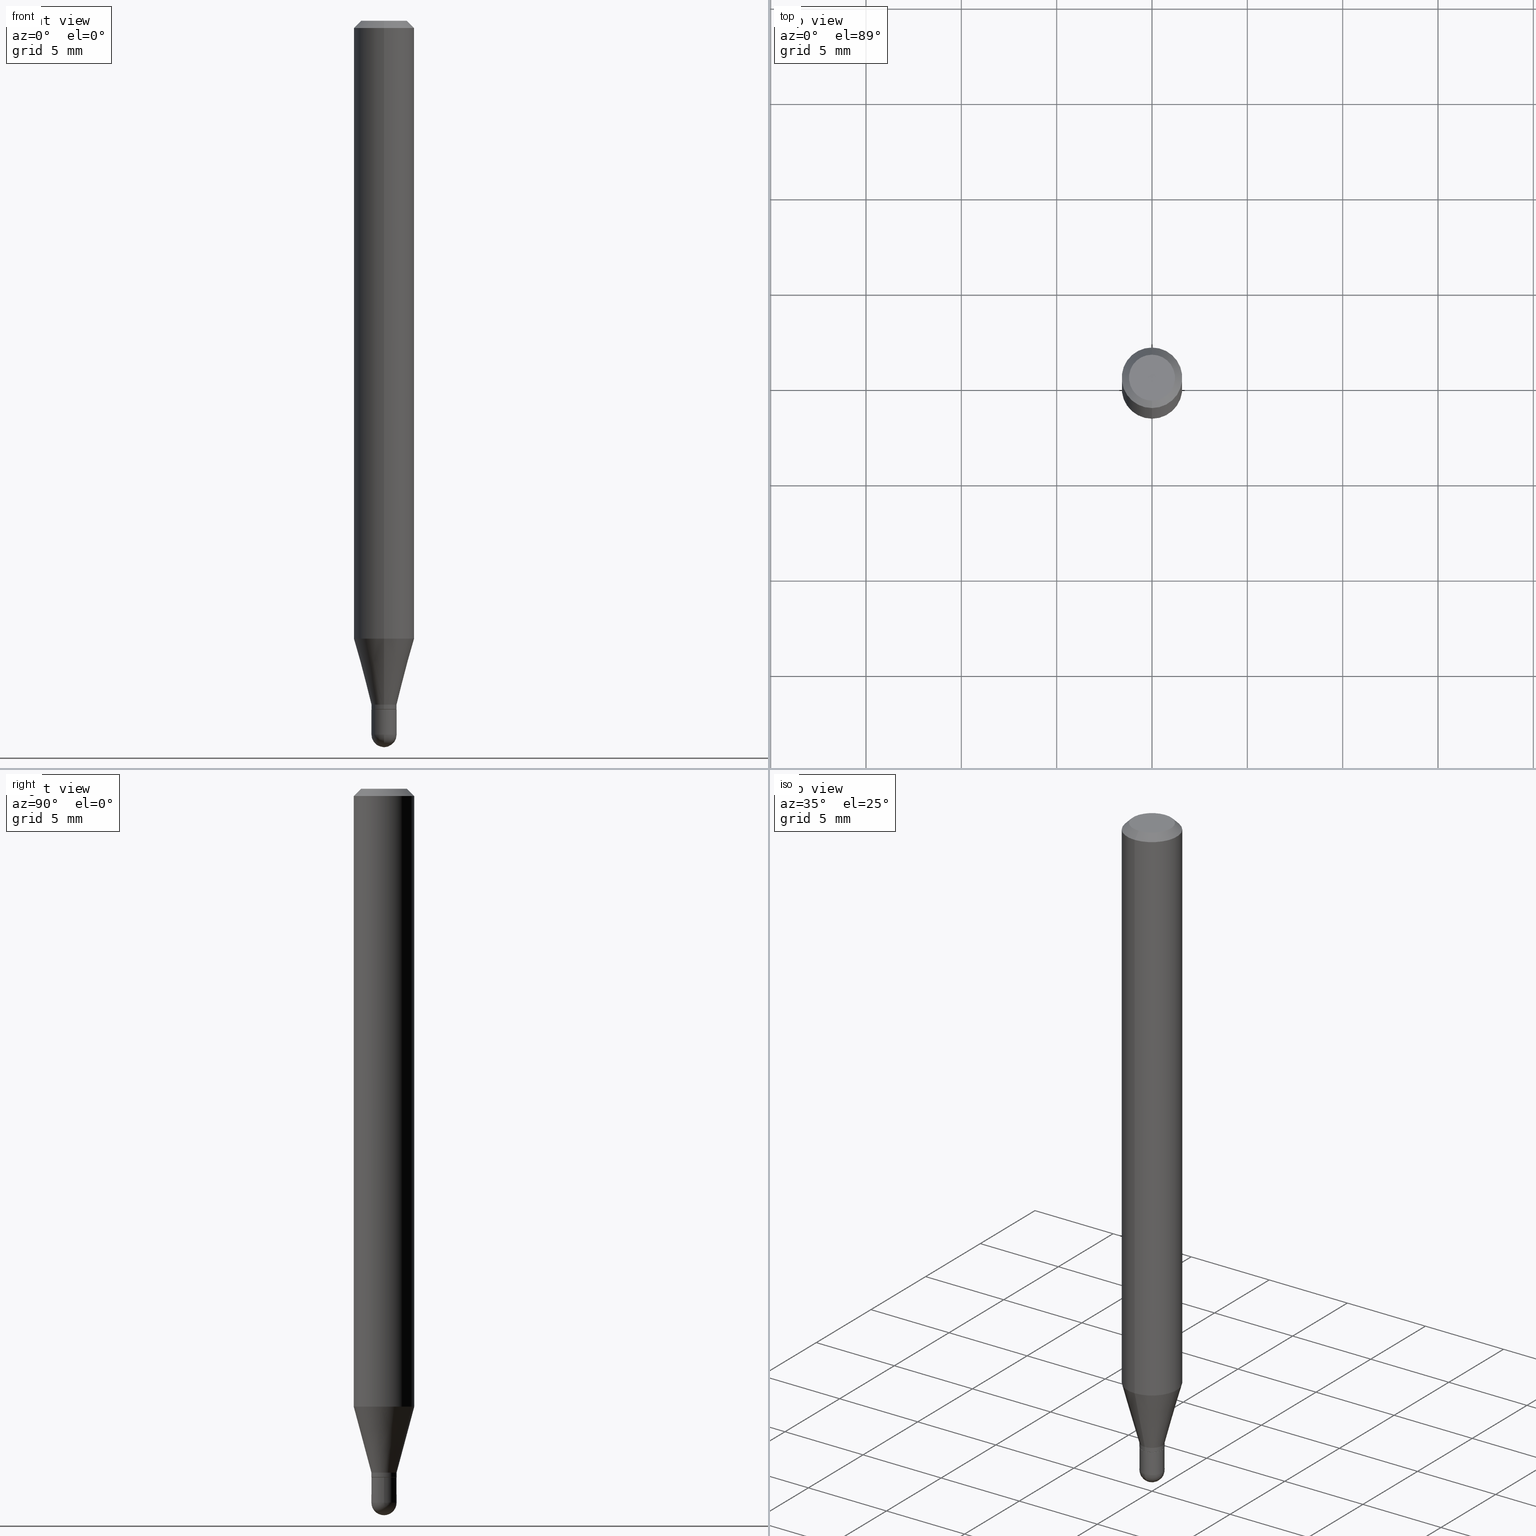
[diagram: canonical four-view strip — front | top / right | iso, engineering-drawing reading convention]
A machine part, canonical four-view strip (front | top / right | iso — engineering-drawing reading convention). The complete STEP part file that produces these views, byte-faithful:
ISO-10303-21;
HEADER;
FILE_DESCRIPTION (( 'STEP AP203' ),
    '1' );
FILE_NAME ('02549.STEP',
    '2024-03-07T20:22:27',
    ( '' ),
    ( '' ),
    'SwSTEP 2.0',
    'SolidWorks 2023',
    '' );
FILE_SCHEMA (( 'CONFIG_CONTROL_DESIGN' ));
ENDSEC;

DATA;
#1 = CC_DESIGN_PERSON_AND_ORGANIZATION_ASSIGNMENT ( #487, #142, ( #154 ) ) ;
#2 = DIRECTION ( 'NONE',  ( 0.000000000000000000, 0.000000000000000000, 1.000000000000000000 ) ) ;
#3 = CIRCLE ( 'NONE', #109, 0.02600000000000011330 ) ;
#4 = FACE_OUTER_BOUND ( 'NONE', #59, .T. ) ;
#5 = APPLICATION_CONTEXT ( 'configuration controlled 3d designs of mechanical parts and assemblies' ) ;
#6 = CARTESIAN_POINT ( 'NONE',  ( 3.144151605738769548E-16, 0.02599999999999499239, -1.412000000000000366 ) ) ;
#7 = COORDINATED_UNIVERSAL_TIME_OFFSET ( 5, 0, .BEHIND. ) ;
#8 = EDGE_CURVE ( 'NONE', #115, #297, #303, .T. ) ;
#9 = LOCAL_TIME ( 15, 22, 27.00000000000000000, #24 ) ;
#10 = APPROVAL_STATUS ( 'not_yet_approved' ) ;
#11 = VERTEX_POINT ( 'NONE', #13 ) ;
#12 = EDGE_LOOP ( 'NONE', ( #480, #423, #65, #251 ) ) ;
#13 = CARTESIAN_POINT ( 'NONE',  ( -1.780655482809649650E-16, -0.02550000000000495967, -1.421999999999999931 ) ) ;
#14 = CARTESIAN_POINT ( 'NONE',  ( -1.780655482809649650E-16, -0.02550000000000495967, -1.421999999999999931 ) ) ;
#15 = ORIENTED_EDGE ( 'NONE', *, *, #267, .F. ) ;
#16 = EDGE_LOOP ( 'NONE', ( #447, #228, #294, #153 ) ) ;
#17 = ADVANCED_FACE ( 'NONE', ( #106 ), #128, .T. ) ;
#18 = VECTOR ( 'NONE', #472, 39.37007874015748143 ) ;
#19 = DIRECTION ( 'NONE',  ( -2.445458525354420395E-29, 3.491496061577879933E-15, 1.000000000000000000 ) ) ;
#20 = VECTOR ( 'NONE', #468, 39.37007874015748143 ) ;
#21 = SHAPE_DEFINITION_REPRESENTATION ( #491, #174 ) ;
#22 = FACE_OUTER_BOUND ( 'NONE', #192, .T. ) ;
#23 = ORIENTED_EDGE ( 'NONE', *, *, #322, .T. ) ;
#24 = COORDINATED_UNIVERSAL_TIME_OFFSET ( 5, 0, .BEHIND. ) ;
#25 = EDGE_CURVE ( 'NONE', #257, #254, #203, .T. ) ;
#26 = DIRECTION ( 'NONE',  ( 5.024295867788190974E-15, 0.7071067811865681119, 0.7071067811865270336 ) ) ;
#27 = VERTEX_POINT ( 'NONE', #6 ) ;
#28 = EDGE_CURVE ( 'NONE', #254, #257, #76, .T. ) ;
#29 = ORIENTED_EDGE ( 'NONE', *, *, #69, .F. ) ;
#30 = CARTESIAN_POINT ( 'NONE',  ( 3.477456642395264859E-29, -4.964886463834953365E-15, -1.421999999999999931 ) ) ;
#31 = DIRECTION ( 'NONE',  ( -6.982962677686265922E-15, -1.000000000000000000, 3.491496061577879933E-15 ) ) ;
#32 = ADVANCED_FACE ( 'NONE', ( #4 ), #492, .T. ) ;
#33 = DIRECTION ( 'NONE',  ( 1.000000000000000000, -6.982962677686257244E-15, 0.000000000000000000 ) ) ;
#34 = CC_DESIGN_DATE_AND_TIME_ASSIGNMENT ( #338, #368, ( #489 ) ) ;
#35 = DIRECTION ( 'NONE',  ( -6.982962677686265133E-15, -1.000000000000000000, 0.000000000000000000 ) ) ;
#36 = AXIS2_PLACEMENT_3D ( 'NONE', #229, #506, #195 ) ;
#38 = CIRCLE ( 'NONE', #374, 0.02599999999999992248 ) ;
#37 = DIRECTION ( 'NONE',  ( -2.445468806185136877E-29, 3.491481338843145188E-15, 1.000000000000000000 ) ) ;
#39 = CARTESIAN_POINT ( 'NONE',  ( 8.024680406694662716E-45, -1.145721333848216833E-30, -3.281462483822598204E-16 ) ) ;
#40 = PRODUCT_DEFINITION ( 'UNKNOWN', '', #154, #48 ) ;
#41 = DIRECTION ( 'NONE',  ( -6.982962677686266711E-15, -1.000000000000000000, 3.491496061577880327E-15 ) ) ;
#42 = CARTESIAN_POINT ( 'NONE',  ( 0.000000000000000000, 0.000000000000000000, 0.000000000000000000 ) ) ;
#43 = CARTESIAN_POINT ( 'NONE',  ( 1.815570296198776877E-16, 0.02599999999999503403, -1.421999999999999931 ) ) ;
#44 = CARTESIAN_POINT ( 'NONE',  ( 3.452987437800442419E-29, -4.929992438947967820E-15, -1.412000000000000366 ) ) ;
#45 = AXIS2_PLACEMENT_3D ( 'NONE', #44, #439, #173 ) ;
#46 = PERSON_AND_ORGANIZATION ( #50, #360 ) ;
#47 = VECTOR ( 'NONE', #367, 39.37007874015748143 ) ;
#48 = DESIGN_CONTEXT ( 'detailed design', #5, 'design' ) ;
#49 = APPROVAL_DATE_TIME ( #250, #385 ) ;
#50 = PERSON ( 'UNSPECIFIED', 'UNSPECIFIED', 'UNSPECIFIED', ('UNSPECIFIED'), ('UNSPECIFIED'), ('UNSPECIFIED') ) ;
#51 = LENGTH_MEASURE_WITH_UNIT ( LENGTH_MEASURE( 0.02539999999999999897 ), #442 );
#52 = VECTOR ( 'NONE', #170, 39.37007874015748143 ) ;
#53 = CONICAL_SURFACE ( 'NONE', #36, 0.06250000000000000000, 0.7853981633974483900 ) ;
#54 = CIRCLE ( 'NONE', #122, 0.06250000000000000000 ) ;
#55 = ORIENTED_EDGE ( 'NONE', *, *, #86, .T. ) ;
#56 = CARTESIAN_POINT ( 'NONE',  ( 3.840629472727447874E-16, 0.04749999999999999362, -4.939923113072091241E-16 ) ) ;
#57 = DIRECTION ( 'NONE',  ( 1.000000000000000000, -6.982962677686257244E-15, 0.000000000000000000 ) ) ;
#58 = ADVANCED_FACE ( 'NONE', ( #327 ), #478, .T. ) ;
#59 = EDGE_LOOP ( 'NONE', ( #372, #193, #407, #414 ) ) ;
#60 = FACE_OUTER_BOUND ( 'NONE', #440, .T. ) ;
#61 = EDGE_CURVE ( 'NONE', #11, #415, #118, .T. ) ;
#62 = CALENDAR_DATE ( 2024, 7, 3 ) ;
#63 = DIRECTION ( 'NONE',  ( -2.445468806185136597E-29, 3.491481338843145583E-15, 1.000000000000000000 ) ) ;
#64 = CC_DESIGN_SECURITY_CLASSIFICATION ( #489, ( #154 ) ) ;
#65 = ORIENTED_EDGE ( 'NONE', *, *, #390, .T. ) ;
#66 = DIRECTION ( 'NONE',  ( -2.445458525354420395E-29, 3.491496061577879933E-15, 1.000000000000000000 ) ) ;
#67 = ORIENTED_EDGE ( 'NONE', *, *, #300, .F. ) ;
#68 = AXIS2_PLACEMENT_3D ( 'NONE', #233, #279, #349 ) ;
#69 = EDGE_CURVE ( 'NONE', #318, #337, #185, .T. ) ;
#70 = CARTESIAN_POINT ( 'NONE',  ( 3.602397587965025364E-29, -5.149627575132580366E-15, -1.474000000000000199 ) ) ;
#71 = EDGE_LOOP ( 'NONE', ( #223, #497, #281, #373 ) ) ;
#72 = CARTESIAN_POINT ( 'NONE',  ( 4.440892098500939734E-16, 0.06249999999999995143, -0.01500000000000054588 ) ) ;
#73 = ORIENTED_EDGE ( 'NONE', *, *, #28, .F. ) ;
#74 = PERSON_AND_ORGANIZATION_ROLE ( 'classification_officer' ) ;
#75 = FACE_OUTER_BOUND ( 'NONE', #370, .T. ) ;
#76 = CIRCLE ( 'NONE', #427, 0.06250000000000000000 ) ;
#77 = MANIFOLD_SOLID_BREP ( 'Body-Move/Copy2[1]', #135 ) ;
#78 = CIRCLE ( 'NONE', #474, 0.02599999999999999534 ) ;
#79 = FACE_OUTER_BOUND ( 'NONE', #453, .T. ) ;
#80 = CC_DESIGN_PERSON_AND_ORGANIZATION_ASSIGNMENT ( #255, #74, ( #489 ) ) ;
#81 = CARTESIAN_POINT ( 'NONE',  ( -1.815570296198081940E-16, -0.02600000000000497052, -1.421500000000000208 ) ) ;
#82 = DIRECTION ( 'NONE',  ( 1.000000000000000000, -6.982962677686257244E-15, 0.000000000000000000 ) ) ;
#83 = CC_DESIGN_APPROVAL ( #159, ( #489 ) ) ;
#84 = LOCAL_TIME ( 15, 22, 27.00000000000000000, #172 ) ;
#85 = CIRCLE ( 'NONE', #224, 0.02599999999999991901 ) ;
#86 = EDGE_CURVE ( 'NONE', #105, #254, #431, .T. ) ;
#87 = FACE_OUTER_BOUND ( 'NONE', #12, .T. ) ;
#88 = CYLINDRICAL_SURFACE ( 'NONE', #459, 0.06250000000000000000 ) ;
#89 = CARTESIAN_POINT ( 'NONE',  ( 3.664868060749905896E-29, -5.241998130781394261E-15, -1.500000000000000444 ) ) ;
#90 = DIRECTION ( 'NONE',  ( -2.445458525354420395E-29, 3.491496061577879933E-15, 1.000000000000000000 ) ) ;
#91 = APPROVAL_ROLE ( '' ) ;
#92 = ADVANCED_FACE ( 'NONE', ( #234 ), #201, .T. ) ;
#93 = PERSON_AND_ORGANIZATION ( #50, #360 ) ;
#94 = AXIS2_PLACEMENT_3D ( 'NONE', #205, #315, #35 ) ;
#95 = VERTEX_POINT ( 'NONE', #56 ) ;
#96 = ORIENTED_EDGE ( 'NONE', *, *, #141, .T. ) ;
#97 = CYLINDRICAL_SURFACE ( 'NONE', #392, 0.06250000000000000000 ) ;
#98 = PERSON_AND_ORGANIZATION ( #50, #360 ) ;
#99 = EDGE_CURVE ( 'NONE', #11, #331, #490, .T. ) ;
#100 = EDGE_LOOP ( 'NONE', ( #312, #102, #219, #67, #488 ) ) ;
#101 = CIRCLE ( 'NONE', #504, 0.04749999999999999362 ) ;
#102 = ORIENTED_EDGE ( 'NONE', *, *, #406, .T. ) ;
#103 = DIRECTION ( 'NONE',  ( -6.982962677686266711E-15, -1.000000000000000000, 3.491496061577880327E-15 ) ) ;
#104 = DIRECTION ( 'NONE',  ( -6.982962677686265133E-15, -1.000000000000000000, 0.000000000000000000 ) ) ;
#105 = VERTEX_POINT ( 'NONE', #183 ) ;
#106 = FACE_OUTER_BOUND ( 'NONE', #335, .T. ) ;
#107 = PERSON_AND_ORGANIZATION ( #50, #360 ) ;
#108 = DIRECTION ( 'NONE',  ( -6.982962677686266711E-15, -1.000000000000000000, 0.000000000000000000 ) ) ;
#109 = AXIS2_PLACEMENT_3D ( 'NONE', #387, #171, #505 ) ;
#110 = ORIENTED_EDGE ( 'NONE', *, *, #463, .F. ) ;
#111 = LINE ( 'NONE', #188, #169 ) ;
#112 = FACE_OUTER_BOUND ( 'NONE', #146, .T. ) ;
#113 = ORIENTED_EDGE ( 'NONE', *, *, #243, .T. ) ;
#114 = LINE ( 'NONE', #264, #430 ) ;
#115 = VERTEX_POINT ( 'NONE', #298 ) ;
#116 = DIRECTION ( 'NONE',  ( -2.445458525354420395E-29, 3.491496061577879933E-15, 1.000000000000000000 ) ) ;
#117 = PRODUCT_RELATED_PRODUCT_CATEGORY ( 'detail', '', ( #180 ) ) ;
#118 = CIRCLE ( 'NONE', #466, 0.02549999999999999489 ) ;
#119 = ADVANCED_FACE ( 'NONE', ( #60 ), #97, .T. ) ;
#120 = CIRCLE ( 'NONE', #469, 0.02599999999999992248 ) ;
#121 = LINE ( 'NONE', #470, #398 ) ;
#122 = AXIS2_PLACEMENT_3D ( 'NONE', #245, #325, #405 ) ;
#123 = CARTESIAN_POINT ( 'NONE',  ( -4.287811248607203282E-16, -0.06250000000000005551, -0.01500000000000011047 ) ) ;
#124 = CARTESIAN_POINT ( 'NONE',  ( 3.477456642395264859E-29, -4.964886463834953365E-15, -1.421999999999999931 ) ) ;
#125 = ADVANCED_FACE ( 'NONE', ( #436 ), #88, .T. ) ;
#126 = EDGE_CURVE ( 'NONE', #27, #379, #111, .T. ) ;
#127 = DIRECTION ( 'NONE',  ( 1.000000000000000000, -6.982962677686266711E-15, 4.876176775795935793E-29 ) ) ;
#128 = CONICAL_SURFACE ( 'NONE', #239, 0.02549999999999999489, 0.7853981633974739252 ) ;
#129 = VECTOR ( 'NONE', #26, 39.37007874015748143 ) ;
#130 = CARTESIAN_POINT ( 'NONE',  ( 3.602397587965025364E-29, -5.149627575132580366E-15, -1.474000000000000199 ) ) ;
#131 = DIRECTION ( 'NONE',  ( -2.445458525354420395E-29, 3.491496061577879933E-15, 1.000000000000000000 ) ) ;
#132 =( NAMED_UNIT ( * ) PLANE_ANGLE_UNIT ( ) SI_UNIT ( $, .RADIAN. ) );
#133 = CALENDAR_DATE ( 2024, 7, 3 ) ;
#134 = EDGE_CURVE ( 'NONE', #421, #318, #3, .T. ) ;
#135 = CLOSED_SHELL ( 'NONE', ( #178, #92, #399, #363, #400 ) ) ;
#136 = CARTESIAN_POINT ( 'NONE',  ( 0.000000000000000000, 0.000000000000000000, 0.000000000000000000 ) ) ;
#137 = CIRCLE ( 'NONE', #428, 0.02600000000000000228 ) ;
#138 = APPROVAL_ROLE ( '' ) ;
#139 = ORIENTED_EDGE ( 'NONE', *, *, #221, .T. ) ;
#140 = DIRECTION ( 'NONE',  ( -2.445458525354420395E-29, 3.491496061577879933E-15, 1.000000000000000000 ) ) ;
#141 = EDGE_CURVE ( 'NONE', #415, #342, #340, .T. ) ;
#142 = PERSON_AND_ORGANIZATION_ROLE ( 'design_supplier' ) ;
#143 = ORIENTED_EDGE ( 'NONE', *, *, #334, .F. ) ;
#144 = EDGE_LOOP ( 'NONE', ( #458, #139, #457, #29 ) ) ;
#145 = AXIS2_PLACEMENT_3D ( 'NONE', #196, #301, #103 ) ;
#146 = EDGE_LOOP ( 'NONE', ( #149, #462 ) ) ;
#147 = ORIENTED_EDGE ( 'NONE', *, *, #243, .F. ) ;
#148 = FACE_OUTER_BOUND ( 'NONE', #333, .T. ) ;
#149 = ORIENTED_EDGE ( 'NONE', *, *, #329, .T. ) ;
#150 = AXIS2_PLACEMENT_3D ( 'NONE', #218, #2, #179 ) ;
#151 = PLANE ( 'NONE',  #232 ) ;
#152 = ADVANCED_FACE ( 'NONE', ( #148 ), #53, .T. ) ;
#153 = ORIENTED_EDGE ( 'NONE', *, *, #212, .F. ) ;
#154 = PRODUCT_DEFINITION_FORMATION_WITH_SPECIFIED_SOURCE ( 'ANY', '', #180, .NOT_KNOWN. ) ;
#155 = AXIS2_PLACEMENT_3D ( 'NONE', #289, #248, #209 ) ;
#156 = CYLINDRICAL_SURFACE ( 'NONE', #145, 0.02599999999999992248 ) ;
#157 = AXIS2_PLACEMENT_3D ( 'NONE', #43, #391, #429 ) ;
#158 = DIRECTION ( 'NONE',  ( -2.445458525354420395E-29, 3.491496061577879933E-15, 1.000000000000000000 ) ) ;
#159 = APPROVAL ( #424, 'UNSPECIFIED' ) ;
#160 = CARTESIAN_POINT ( 'NONE',  ( -0.02600000000000000228, -4.870923867347250071E-15, -1.474000000000000199 ) ) ;
#161 = FACE_OUTER_BOUND ( 'NONE', #445, .T. ) ;
#162 = VECTOR ( 'NONE', #454, 39.37007874015748854 ) ;
#163 = ORIENTED_EDGE ( 'NONE', *, *, #334, .T. ) ;
#164 = AXIS2_PLACEMENT_3D ( 'NONE', #348, #381, #31 ) ;
#165 = CARTESIAN_POINT ( 'NONE',  ( 1.847411112976624507E-16, 0.02599999999999490913, -1.474000000000000199 ) ) ;
#166 = DIRECTION ( 'NONE',  ( -2.445468806185136597E-29, 3.491481338843145583E-15, 1.000000000000000000 ) ) ;
#167 = APPROVAL_PERSON_ORGANIZATION ( #98, #285, #138 ) ;
#168 = CARTESIAN_POINT ( 'NONE',  ( 0.000000000000000000, 0.000000000000000000, 0.000000000000000000 ) ) ;
#169 = VECTOR ( 'NONE', #225, 39.37007874015748854 ) ;
#170 = DIRECTION ( 'NONE',  ( -2.445458525354420395E-29, 3.491496061577879933E-15, 1.000000000000000000 ) ) ;
#171 = DIRECTION ( 'NONE',  ( 1.000000000000000000, -7.105427357601001070E-15, 4.926315508542082329E-29 ) ) ;
#172 = COORDINATED_UNIVERSAL_TIME_OFFSET ( 5, 0, .BEHIND. ) ;
#173 = DIRECTION ( 'NONE',  ( -6.982962677686266711E-15, -1.000000000000000000, 0.000000000000000000 ) ) ;
#174 = ADVANCED_BREP_SHAPE_REPRESENTATION ( '02549', ( #77, #246, #150 ), #485 ) ;
#175 = PERSON_AND_ORGANIZATION ( #50, #360 ) ;
#176 =( CONVERSION_BASED_UNIT ( 'INCH', #51 ) LENGTH_UNIT ( ) NAMED_UNIT ( #253 ) );
#177 = EDGE_CURVE ( 'NONE', #115, #27, #120, .T. ) ;
#178 = ADVANCED_FACE ( 'NONE', ( #199 ), #259, .T. ) ;
#179 = DIRECTION ( 'NONE',  ( 1.000000000000000000, 0.000000000000000000, 0.000000000000000000 ) ) ;
#180 = PRODUCT ( '02549', '02549', '', ( #408 ) ) ;
#181 = ORIENTED_EDGE ( 'NONE', *, *, #443, .F. ) ;
#182 = ORIENTED_EDGE ( 'NONE', *, *, #390, .F. ) ;
#183 = CARTESIAN_POINT ( 'NONE',  ( -3.773273898774340269E-16, -0.04749999999999999362, -1.623001854573105413E-16 ) ) ;
#184 = VERTEX_POINT ( 'NONE', #422 ) ;
#185 = CIRCLE ( 'NONE', #247, 0.02600000000000000228 ) ;
#186 = CARTESIAN_POINT ( 'NONE',  ( -4.364351673553916201E-16, -0.06250000000000000000, 2.182185038486174958E-16 ) ) ;
#187 = CIRCLE ( 'NONE', #346, 0.02600000000000000228 ) ;
#188 = CARTESIAN_POINT ( 'NONE',  ( 1.847411112976599855E-16, 0.02599999999999499239, -1.412000000000000366 ) ) ;
#189 = EDGE_LOOP ( 'NONE', ( #344, #341 ) ) ;
#190 = CC_DESIGN_PERSON_AND_ORGANIZATION_ASSIGNMENT ( #46, #357, ( #40 ) ) ;
#191 = CARTESIAN_POINT ( 'NONE',  ( 3.452987437800442419E-29, -4.929992438947967820E-15, -1.412000000000000366 ) ) ;
#192 = EDGE_LOOP ( 'NONE', ( #366, #96, #266, #451 ) ) ;
#193 = ORIENTED_EDGE ( 'NONE', *, *, #267, .T. ) ;
#194 = APPROVAL_DATE_TIME ( #418, #159 ) ;
#195 = DIRECTION ( 'NONE',  ( 6.982962677686265922E-15, 1.000000000000000000, -3.483106191921935554E-15 ) ) ;
#196 = CARTESIAN_POINT ( 'NONE',  ( 0.000000000000000000, 0.000000000000000000, 0.000000000000000000 ) ) ;
#197 = AXIS2_PLACEMENT_3D ( 'NONE', #272, #158, #456 ) ;
#198 = CC_DESIGN_PERSON_AND_ORGANIZATION_ASSIGNMENT ( #290, #332, ( #154 ) ) ;
#199 = FACE_OUTER_BOUND ( 'NONE', #100, .T. ) ;
#200 = PLANE ( 'NONE',  #157 ) ;
#201 = SPHERICAL_SURFACE ( 'NONE', #316, 0.02600000000000011330 ) ;
#202 = DIRECTION ( 'NONE',  ( 2.445458525354420395E-29, -3.491496061577879933E-15, -1.000000000000000000 ) ) ;
#203 = CIRCLE ( 'NONE', #155, 0.06250000000000000000 ) ;
#204 = DIRECTION ( 'NONE',  ( 1.000000000000000000, -6.982962677686265133E-15, 4.883557194083112901E-29 ) ) ;
#205 = CARTESIAN_POINT ( 'NONE',  ( 3.476219293791308538E-29, -4.963161651532957573E-15, -1.421500000000000208 ) ) ;
#206 = CARTESIAN_POINT ( 'NONE',  ( 4.440892098500935790E-16, 0.06249999999999552441, -1.275780145523737197 ) ) ;
#207 = LOCAL_TIME ( 15, 22, 27.00000000000000000, #7 ) ;
#208 = CARTESIAN_POINT ( 'NONE',  ( 3.604621020316892110E-29, -5.146443493454796836E-15, -1.474000000000000199 ) ) ;
#209 = DIRECTION ( 'NONE',  ( -6.982962677686265922E-15, -1.000000000000000000, 3.483106191921935554E-15 ) ) ;
#210 = ADVANCED_FACE ( 'NONE', ( #343 ), #156, .T. ) ;
#211 = AXIS2_PLACEMENT_3D ( 'NONE', #393, #323, #320 ) ;
#212 = EDGE_CURVE ( 'NONE', #331, #115, #345, .T. ) ;
#213 = APPLICATION_PROTOCOL_DEFINITION ( 'international standard', 'config_control_design', 1994, #288 ) ;
#214 = EDGE_CURVE ( 'NONE', #297, #254, #371, .T. ) ;
#215 = DATE_AND_TIME ( #133, #207 ) ;
#216 = CIRCLE ( 'NONE', #382, 0.02549999999999999489 ) ;
#217 = ORIENTED_EDGE ( 'NONE', *, *, #426, .T. ) ;
#218 = CARTESIAN_POINT ( 'NONE',  ( 0.000000000000000000, 0.000000000000000000, 0.000000000000000000 ) ) ;
#219 = ORIENTED_EDGE ( 'NONE', *, *, #268, .F. ) ;
#220 = DIRECTION ( 'NONE',  ( 1.000000000000000000, -6.982962677686258822E-15, 0.000000000000000000 ) ) ;
#221 = EDGE_CURVE ( 'NONE', #421, #448, #299, .T. ) ;
#222 = CARTESIAN_POINT ( 'NONE',  ( -1.815570296198423862E-16, -0.02599999999999992248, 9.077889760102461566E-17 ) ) ;
#223 = ORIENTED_EDGE ( 'NONE', *, *, #221, .F. ) ;
#224 = AXIS2_PLACEMENT_3D ( 'NONE', #227, #378, #425 ) ;
#225 = DIRECTION ( 'NONE',  ( 1.839019923739603471E-15, 0.2588190451025254024, 0.9659258262890669799 ) ) ;
#226 = ORIENTED_EDGE ( 'NONE', *, *, #141, .F. ) ;
#227 = CARTESIAN_POINT ( 'NONE',  ( 3.476219293791308538E-29, -4.963161651532957573E-15, -1.421500000000000208 ) ) ;
#228 = ORIENTED_EDGE ( 'NONE', *, *, #481, .T. ) ;
#229 = CARTESIAN_POINT ( 'NONE',  ( 3.668187788031710974E-31, -5.237244092366934457E-17, -0.01500000000000032904 ) ) ;
#230 = CC_DESIGN_PERSON_AND_ORGANIZATION_ASSIGNMENT ( #93, #292, ( #180 ) ) ;
#231 = PLANE ( 'NONE',  #164 ) ;
#232 = AXIS2_PLACEMENT_3D ( 'NONE', #498, #307, #501 ) ;
#233 = CARTESIAN_POINT ( 'NONE',  ( 8.024680406694662716E-45, -1.145721333848216833E-30, -3.281462483822598204E-16 ) ) ;
#234 = FACE_OUTER_BOUND ( 'NONE', #71, .T. ) ;
#235 = DIRECTION ( 'NONE',  ( -6.982962677686265133E-15, -1.000000000000000000, 0.000000000000000000 ) ) ;
#236 = APPROVAL_PERSON_ORGANIZATION ( #107, #159, #460 ) ;
#237 = ADVANCED_FACE ( 'NONE', ( #112 ), #151, .F. ) ;
#238 = DIRECTION ( 'NONE',  ( -2.445468806185136597E-29, 3.491481338843145583E-15, 1.000000000000000000 ) ) ;
#239 = AXIS2_PLACEMENT_3D ( 'NONE', #358, #90, #356 ) ;
#240 = AXIS2_PLACEMENT_3D ( 'NONE', #70, #461, #104 ) ;
#241 = DIRECTION ( 'NONE',  ( 1.000000000000000000, -6.982962677686265133E-15, 4.883557194083112901E-29 ) ) ;
#242 = DIRECTION ( 'NONE',  ( -6.982962677686266711E-15, -1.000000000000000000, 0.000000000000000000 ) ) ;
#243 = EDGE_CURVE ( 'NONE', #415, #11, #216, .T. ) ;
#244 = DIRECTION ( 'NONE',  ( -6.982962677686265922E-15, -1.000000000000000000, 3.483106191921935554E-15 ) ) ;
#245 = CARTESIAN_POINT ( 'NONE',  ( 3.119867433348925085E-29, -4.454381353535382076E-15, -1.275780145523736753 ) ) ;
#246 = MANIFOLD_SOLID_BREP ( 'Body-Move/Copy2[2]', #508 ) ;
#247 = AXIS2_PLACEMENT_3D ( 'NONE', #384, #510, #277 ) ;
#248 = DIRECTION ( 'NONE',  ( -2.445458525354420395E-29, 3.491496061577879933E-15, 1.000000000000000000 ) ) ;
#249 = CIRCLE ( 'NONE', #435, 0.02600000000000000228 ) ;
#250 = DATE_AND_TIME ( #359, #403 ) ;
#251 = ORIENTED_EDGE ( 'NONE', *, *, #25, .T. ) ;
#252 = CARTESIAN_POINT ( 'NONE',  ( 1.847411112976254729E-16, 0.02599999999999992248, -9.077889760102461566E-17 ) ) ;
#253 = DIMENSIONAL_EXPONENTS ( 1.000000000000000000, 0.000000000000000000, 0.000000000000000000, 0.000000000000000000, 0.000000000000000000, 0.000000000000000000, 0.000000000000000000 ) ;
#254 = VERTEX_POINT ( 'NONE', #450 ) ;
#255 = PERSON_AND_ORGANIZATION ( #50, #360 ) ;
#256 = VECTOR ( 'NONE', #66, 39.37007874015748143 ) ;
#257 = VERTEX_POINT ( 'NONE', #72 ) ;
#258 = ORIENTED_EDGE ( 'NONE', *, *, #212, .T. ) ;
#259 = CYLINDRICAL_SURFACE ( 'NONE', #330, 0.02600000000000000228 ) ;
#260 = ORIENTED_EDGE ( 'NONE', *, *, #8, .F. ) ;
#261 = DIRECTION ( 'NONE',  ( -2.445458525354420395E-29, 3.491496061577879933E-15, 1.000000000000000000 ) ) ;
#262 = VERTEX_POINT ( 'NONE', #380 ) ;
#263 = EDGE_LOOP ( 'NONE', ( #377, #499, #369, #493 ) ) ;
#264 = CARTESIAN_POINT ( 'NONE',  ( 0.02600000000000000228, -1.815570296198429532E-16, 1.267805961706943404E-30 ) ) ;
#265 = CIRCLE ( 'NONE', #68, 0.04749999999999999362 ) ;
#266 = ORIENTED_EDGE ( 'NONE', *, *, #308, .F. ) ;
#267 = EDGE_CURVE ( 'NONE', #27, #115, #38, .T. ) ;
#268 = EDGE_CURVE ( 'NONE', #184, #262, #78, .T. ) ;
#269 = CARTESIAN_POINT ( 'NONE',  ( 3.477442023053986233E-29, -4.964907399563745843E-15, -1.421999999999999931 ) ) ;
#270 = ORIENTED_EDGE ( 'NONE', *, *, #126, .T. ) ;
#271 = CALENDAR_DATE ( 2024, 7, 3 ) ;
#272 = CARTESIAN_POINT ( 'NONE',  ( 3.477442023053986233E-29, -4.964907399563745843E-15, -1.421999999999999931 ) ) ;
#273 = DIRECTION ( 'NONE',  ( -6.982962677686265922E-15, -1.000000000000000000, 0.000000000000000000 ) ) ;
#274 = LOCAL_TIME ( 15, 22, 27.00000000000000000, #495 ) ;
#275 = CARTESIAN_POINT ( 'NONE',  ( 1.847411112976595911E-16, 0.02599999999999487096, -1.421500000000000208 ) ) ;
#276 = AXIS2_PLACEMENT_3D ( 'NONE', #130, #241, #235 ) ;
#277 = DIRECTION ( 'NONE',  ( 1.000000000000000000, -6.982962677686257244E-15, 0.000000000000000000 ) ) ;
#278 = CARTESIAN_POINT ( 'NONE',  ( 3.604621020316892110E-29, -5.146443493454796836E-15, -1.474000000000000199 ) ) ;
#279 = DIRECTION ( 'NONE',  ( -2.445458525354420395E-29, 3.491496061577879933E-15, 1.000000000000000000 ) ) ;
#280 = APPROVAL_PERSON_ORGANIZATION ( #175, #385, #91 ) ;
#281 = ORIENTED_EDGE ( 'NONE', *, *, #417, .F. ) ;
#282 = CARTESIAN_POINT ( 'NONE',  ( 3.452987437800442419E-29, -4.929992438947967820E-15, -1.412000000000000366 ) ) ;
#283 = CIRCLE ( 'NONE', #482, 0.02599999999999999534 ) ;
#284 = ADVANCED_FACE ( 'NONE', ( #22 ), #310, .T. ) ;
#285 = APPROVAL ( #10, 'UNSPECIFIED' ) ;
#286 = DIRECTION ( 'NONE',  ( -2.445458525354420395E-29, 3.491496061577879933E-15, 1.000000000000000000 ) ) ;
#287 = CARTESIAN_POINT ( 'NONE',  ( 3.668187788031710974E-31, -5.237244092366934457E-17, -0.01500000000000032904 ) ) ;
#288 = APPLICATION_CONTEXT ( 'configuration controlled 3d designs of mechanical parts and assemblies' ) ;
#289 = CARTESIAN_POINT ( 'NONE',  ( 3.668187788031710974E-31, -5.237244092366934457E-17, -0.01500000000000032904 ) ) ;
#290 = PERSON_AND_ORGANIZATION ( #50, #360 ) ;
#291 = CONICAL_SURFACE ( 'NONE', #351, 0.06250000000000000000, 0.7853981633974483900 ) ;
#292 = PERSON_AND_ORGANIZATION_ROLE ( 'design_owner' ) ;
#293 = LINE ( 'NONE', #252, #52 ) ;
#294 = ORIENTED_EDGE ( 'NONE', *, *, #177, .F. ) ;
#295 = DIRECTION ( 'NONE',  ( -6.982962677686265922E-15, -1.000000000000000000, 3.491496061577879933E-15 ) ) ;
#296 = DIRECTION ( 'NONE',  ( -6.982962677686265133E-15, -1.000000000000000000, 0.000000000000000000 ) ) ;
#297 = VERTEX_POINT ( 'NONE', #313 ) ;
#298 = CARTESIAN_POINT ( 'NONE',  ( -1.815570296198078736E-16, -0.02600000000000485256, -1.412000000000000366 ) ) ;
#299 = CIRCLE ( 'NONE', #240, 0.02600000000000011330 ) ;
#300 = EDGE_CURVE ( 'NONE', #503, #184, #114, .T. ) ;
#301 = DIRECTION ( 'NONE',  ( -2.445458525354420395E-29, 3.491496061577879933E-15, 1.000000000000000000 ) ) ;
#302 = ORIENTED_EDGE ( 'NONE', *, *, #177, .T. ) ;
#303 = LINE ( 'NONE', #412, #162 ) ;
#304 = DIRECTION ( 'NONE',  ( -2.445468806185136597E-29, 3.491481338843145583E-15, 1.000000000000000000 ) ) ;
#305 = ORIENTED_EDGE ( 'NONE', *, *, #475, .T. ) ;
#306 = DIRECTION ( 'NONE',  ( -2.445458525354420395E-29, 3.491496061577879933E-15, 1.000000000000000000 ) ) ;
#307 = DIRECTION ( 'NONE',  ( 2.445458525354419834E-29, -3.491496061577879933E-15, -1.000000000000000000 ) ) ;
#308 = EDGE_CURVE ( 'NONE', #331, #342, #85, .T. ) ;
#309 = DIRECTION ( 'NONE',  ( -6.982962677686265922E-15, -1.000000000000000000, 3.491496061577879933E-15 ) ) ;
#311 = CARTESIAN_POINT ( 'NONE',  ( 0.000000000000000000, 0.000000000000000000, 0.000000000000000000 ) ) ;
#310 = CONICAL_SURFACE ( 'NONE', #197, 0.02549999999999999489, 0.7853981633974739252 ) ;
#312 = ORIENTED_EDGE ( 'NONE', *, *, #69, .T. ) ;
#313 = CARTESIAN_POINT ( 'NONE',  ( -4.364351673553606080E-16, -0.06250000000000446865, -1.275780145523736531 ) ) ;
#314 = ADVANCED_FACE ( 'NONE', ( #75 ), #231, .F. ) ;
#315 = DIRECTION ( 'NONE',  ( -2.445458525354420395E-29, 3.491496061577879933E-15, 1.000000000000000000 ) ) ;
#316 = AXIS2_PLACEMENT_3D ( 'NONE', #389, #204, #296 ) ;
#317 = CIRCLE ( 'NONE', #94, 0.02599999999999991901 ) ;
#318 = VERTEX_POINT ( 'NONE', #165 ) ;
#319 = DIRECTION ( 'NONE',  ( 6.982962677686265922E-15, 1.000000000000000000, -3.483106191921935554E-15 ) ) ;
#320 = DIRECTION ( 'NONE',  ( -6.982962677686265922E-15, -1.000000000000000000, 4.370956789862821150E-15 ) ) ;
#321 = DIRECTION ( 'NONE',  ( -2.445458525354420395E-29, 3.491496061577879933E-15, 1.000000000000000000 ) ) ;
#322 = EDGE_CURVE ( 'NONE', #379, #257, #434, .T. ) ;
#323 = DIRECTION ( 'NONE',  ( -2.445458525354420395E-29, 3.491496061577879933E-15, 1.000000000000000000 ) ) ;
#324 = VECTOR ( 'NONE', #286, 39.37007874015748143 ) ;
#325 = DIRECTION ( 'NONE',  ( -2.445458525354420395E-29, 3.491496061577879933E-15, 1.000000000000000000 ) ) ;
#326 = CALENDAR_DATE ( 2024, 7, 3 ) ;
#327 = FACE_OUTER_BOUND ( 'NONE', #16, .T. ) ;
#328 = DATE_AND_TIME ( #326, #84 ) ;
#329 = EDGE_CURVE ( 'NONE', #95, #105, #101, .T. ) ;
#330 = AXIS2_PLACEMENT_3D ( 'NONE', #311, #304, #452 ) ;
#331 = VERTEX_POINT ( 'NONE', #81 ) ;
#332 = PERSON_AND_ORGANIZATION_ROLE ( 'creator' ) ;
#333 = EDGE_LOOP ( 'NONE', ( #110, #55, #409, #182 ) ) ;
#334 = EDGE_CURVE ( 'NONE', #297, #379, #441, .T. ) ;
#335 = EDGE_LOOP ( 'NONE', ( #226, #113, #484, #181 ) ) ;
#336 = ORIENTED_EDGE ( 'NONE', *, *, #61, .F. ) ;
#337 = VERTEX_POINT ( 'NONE', #160 ) ;
#338 = DATE_AND_TIME ( #271, #9 ) ;
#339 = AXIS2_PLACEMENT_3D ( 'NONE', #168, #473, #127 ) ;
#340 = LINE ( 'NONE', #496, #129 ) ;
#341 = ORIENTED_EDGE ( 'NONE', *, *, #438, .T. ) ;
#342 = VERTEX_POINT ( 'NONE', #275 ) ;
#343 = FACE_OUTER_BOUND ( 'NONE', #376, .T. ) ;
#344 = ORIENTED_EDGE ( 'NONE', *, *, #268, .T. ) ;
#345 = LINE ( 'NONE', #222, #256 ) ;
#347 = DIRECTION ( 'NONE',  ( -2.445458525354420395E-29, 3.491496061577879933E-15, 1.000000000000000000 ) ) ;
#346 = AXIS2_PLACEMENT_3D ( 'NONE', #208, #166, #33 ) ;
#348 = CARTESIAN_POINT ( 'NONE',  ( 3.477442023053986233E-29, -4.964907399563745843E-15, -1.421999999999999931 ) ) ;
#349 = DIRECTION ( 'NONE',  ( -6.982962677686266711E-15, -1.000000000000000000, 3.491496061577879933E-15 ) ) ;
#350 = CARTESIAN_POINT ( 'NONE',  ( -1.815570296198072819E-16, -0.02600000000000520298, -1.474000000000000199 ) ) ;
#351 = AXIS2_PLACEMENT_3D ( 'NONE', #509, #202, #319 ) ;
#352 = FACE_OUTER_BOUND ( 'NONE', #144, .T. ) ;
#353 = ADVANCED_FACE ( 'NONE', ( #161 ), #419, .T. ) ;
#354 = CYLINDRICAL_SURFACE ( 'NONE', #339, 0.02600000000000000228 ) ;
#355 = DIRECTION ( 'NONE',  ( -2.445468806185136597E-29, 3.491481338843145583E-15, 1.000000000000000000 ) ) ;
#356 = DIRECTION ( 'NONE',  ( -6.982962677686265922E-15, -1.000000000000000000, 0.000000000000000000 ) ) ;
#357 = PERSON_AND_ORGANIZATION_ROLE ( 'creator' ) ;
#358 = CARTESIAN_POINT ( 'NONE',  ( 3.477442023053986233E-29, -4.964907399563745843E-15, -1.421999999999999931 ) ) ;
#359 = CALENDAR_DATE ( 2024, 7, 3 ) ;
#360 = ORGANIZATION ( 'UNSPECIFIED', 'UNSPECIFIED', '' ) ;
#361 =( NAMED_UNIT ( * ) SI_UNIT ( $, .STERADIAN. ) SOLID_ANGLE_UNIT ( ) );
#362 = APPROVAL_DATE_TIME ( #215, #285 ) ;
#363 = ADVANCED_FACE ( 'NONE', ( #352 ), #465, .T. ) ;
#364 = CC_DESIGN_DATE_AND_TIME_ASSIGNMENT ( #328, #477, ( #40 ) ) ;
#365 = ORIENTED_EDGE ( 'NONE', *, *, #443, .T. ) ;
#366 = ORIENTED_EDGE ( 'NONE', *, *, #61, .T. ) ;
#367 = DIRECTION ( 'NONE',  ( -4.937700262164674260E-15, -0.7071067811865632269, 0.7071067811865319186 ) ) ;
#368 = DATE_TIME_ROLE ( 'classification_date' ) ;
#369 = ORIENTED_EDGE ( 'NONE', *, *, #214, .T. ) ;
#370 = EDGE_LOOP ( 'NONE', ( #336, #147 ) ) ;
#371 = LINE ( 'NONE', #186, #449 ) ;
#372 = ORIENTED_EDGE ( 'NONE', *, *, #126, .F. ) ;
#373 = ORIENTED_EDGE ( 'NONE', *, *, #426, .F. ) ;
#374 = AXIS2_PLACEMENT_3D ( 'NONE', #411, #464, #375 ) ;
#375 = DIRECTION ( 'NONE',  ( -6.982962677686266711E-15, -1.000000000000000000, 0.000000000000000000 ) ) ;
#376 = EDGE_LOOP ( 'NONE', ( #383, #365, #258, #15 ) ) ;
#377 = ORIENTED_EDGE ( 'NONE', *, *, #322, .F. ) ;
#378 = DIRECTION ( 'NONE',  ( -2.445458525354420395E-29, 3.491496061577879933E-15, 1.000000000000000000 ) ) ;
#379 = VERTEX_POINT ( 'NONE', #206 ) ;
#380 = CARTESIAN_POINT ( 'NONE',  ( -0.02599999999999999534, -4.870923867347250071E-15, -1.421999999999999931 ) ) ;
#382 = AXIS2_PLACEMENT_3D ( 'NONE', #269, #347, #413 ) ;
#381 = DIRECTION ( 'NONE',  ( -2.445458525354419834E-29, 3.491496061577879933E-15, 1.000000000000000000 ) ) ;
#383 = ORIENTED_EDGE ( 'NONE', *, *, #481, .F. ) ;
#384 = CARTESIAN_POINT ( 'NONE',  ( 3.604621020316892110E-29, -5.146443493454796836E-15, -1.474000000000000199 ) ) ;
#385 = APPROVAL ( #401, 'UNSPECIFIED' ) ;
#386 = CARTESIAN_POINT ( 'NONE',  ( 3.604621020316892110E-29, -5.146443493454796836E-15, -1.474000000000000199 ) ) ;
#387 = CARTESIAN_POINT ( 'NONE',  ( 3.602397587965025364E-29, -5.149627575132580366E-15, -1.474000000000000199 ) ) ;
#388 = CARTESIAN_POINT ( 'NONE',  ( 1.829647544582602512E-16, 0.02549999999999503011, -1.421999999999999931 ) ) ;
#389 = CARTESIAN_POINT ( 'NONE',  ( 3.602397587965025364E-29, -5.149627575132580366E-15, -1.474000000000000199 ) ) ;
#390 = EDGE_CURVE ( 'NONE', #95, #257, #512, .T. ) ;
#391 = DIRECTION ( 'NONE',  ( 2.438088387897960049E-29, -3.491481338843145188E-15, -1.000000000000000000 ) ) ;
#392 = AXIS2_PLACEMENT_3D ( 'NONE', #486, #140, #295 ) ;
#393 = CARTESIAN_POINT ( 'NONE',  ( 3.119867433348925085E-29, -4.454381353535382076E-15, -1.275780145523736753 ) ) ;
#394 = FACE_OUTER_BOUND ( 'NONE', #189, .T. ) ;
#395 = DIRECTION ( 'NONE',  ( -2.445458525354420395E-29, 3.491496061577879933E-15, 1.000000000000000000 ) ) ;
#396 = COORDINATED_UNIVERSAL_TIME_OFFSET ( 5, 0, .BEHIND. ) ;
#397 = AXIS2_PLACEMENT_3D ( 'NONE', #136, #131, #41 ) ;
#398 = VECTOR ( 'NONE', #37, 39.37007874015748143 ) ;
#399 = ADVANCED_FACE ( 'NONE', ( #394 ), #200, .F. ) ;
#400 = ADVANCED_FACE ( 'NONE', ( #79 ), #354, .T. ) ;
#401 = APPROVAL_STATUS ( 'not_yet_approved' ) ;
#402 = ORIENTED_EDGE ( 'NONE', *, *, #406, .F. ) ;
#403 = LOCAL_TIME ( 15, 22, 27.00000000000000000, #396 ) ;
#404 = ORIENTED_EDGE ( 'NONE', *, *, #438, .F. ) ;
#405 = DIRECTION ( 'NONE',  ( -6.982962677686265922E-15, -1.000000000000000000, 4.370956789862821150E-15 ) ) ;
#406 = EDGE_CURVE ( 'NONE', #337, #262, #121, .T. ) ;
#407 = ORIENTED_EDGE ( 'NONE', *, *, #8, .T. ) ;
#408 = MECHANICAL_CONTEXT ( 'NONE', #288, 'mechanical' ) ;
#409 = ORIENTED_EDGE ( 'NONE', *, *, #28, .T. ) ;
#410 = ORIENTED_EDGE ( 'NONE', *, *, #214, .F. ) ;
#411 = CARTESIAN_POINT ( 'NONE',  ( 3.452987437800442419E-29, -4.929992438947967820E-15, -1.412000000000000366 ) ) ;
#412 = CARTESIAN_POINT ( 'NONE',  ( -1.815570296198078736E-16, -0.02600000000000485256, -1.412000000000000366 ) ) ;
#413 = DIRECTION ( 'NONE',  ( -6.982962677686265922E-15, -1.000000000000000000, 0.000000000000000000 ) ) ;
#414 = ORIENTED_EDGE ( 'NONE', *, *, #502, .F. ) ;
#415 = VERTEX_POINT ( 'NONE', #388 ) ;
#416 = ORIENTED_EDGE ( 'NONE', *, *, #300, .T. ) ;
#417 = EDGE_CURVE ( 'NONE', #503, #318, #249, .T. ) ;
#418 = DATE_AND_TIME ( #62, #274 ) ;
#419 = CONICAL_SURFACE ( 'NONE', #494, 0.02599999999999992248, 0.2617993877991507956 ) ;
#420 = DIRECTION ( 'NONE',  ( -2.445468806185136877E-29, 3.491481338843145188E-15, 1.000000000000000000 ) ) ;
#421 = VERTEX_POINT ( 'NONE', #89 ) ;
#422 = CARTESIAN_POINT ( 'NONE',  ( 0.02599999999999999534, -5.146443493454796047E-15, -1.421999999999999931 ) ) ;
#423 = ORIENTED_EDGE ( 'NONE', *, *, #329, .F. ) ;
#424 = APPROVAL_STATUS ( 'not_yet_approved' ) ;
#425 = DIRECTION ( 'NONE',  ( -6.982962677686265133E-15, -1.000000000000000000, 0.000000000000000000 ) ) ;
#426 = EDGE_CURVE ( 'NONE', #448, #503, #187, .T. ) ;
#427 = AXIS2_PLACEMENT_3D ( 'NONE', #287, #395, #244 ) ;
#428 = AXIS2_PLACEMENT_3D ( 'NONE', #278, #238, #57 ) ;
#430 = VECTOR ( 'NONE', #420, 39.37007874015748143 ) ;
#429 = DIRECTION ( 'NONE',  ( -1.000000000000000000, 6.982962677686265922E-15, -4.876176775795935793E-29 ) ) ;
#431 = LINE ( 'NONE', #123, #18 ) ;
#432 = DIRECTION ( 'NONE',  ( -2.445458525354420395E-29, 3.491496061577879933E-15, 1.000000000000000000 ) ) ;
#433 = DIRECTION ( 'NONE',  ( 1.000000000000000000, -6.982962677686258822E-15, 0.000000000000000000 ) ) ;
#434 = LINE ( 'NONE', #511, #324 ) ;
#435 = AXIS2_PLACEMENT_3D ( 'NONE', #386, #437, #82 ) ;
#436 = FACE_OUTER_BOUND ( 'NONE', #263, .T. ) ;
#437 = DIRECTION ( 'NONE',  ( -2.445468806185136597E-29, 3.491481338843145583E-15, 1.000000000000000000 ) ) ;
#438 = EDGE_CURVE ( 'NONE', #262, #184, #283, .T. ) ;
#439 = DIRECTION ( 'NONE',  ( -2.445458525354420395E-29, 3.491496061577879933E-15, 1.000000000000000000 ) ) ;
#440 = EDGE_LOOP ( 'NONE', ( #163, #23, #73, #410 ) ) ;
#441 = CIRCLE ( 'NONE', #211, 0.06250000000000000000 ) ;
#442 =( LENGTH_UNIT ( ) NAMED_UNIT ( * ) SI_UNIT ( $, .METRE. ) );
#443 = EDGE_CURVE ( 'NONE', #342, #331, #317, .T. ) ;
#444 = ADVANCED_FACE ( 'NONE', ( #87 ), #291, .T. ) ;
#445 = EDGE_LOOP ( 'NONE', ( #302, #270, #143, #260 ) ) ;
#446 = SECURITY_CLASSIFICATION_LEVEL ( 'unclassified' ) ;
#447 = ORIENTED_EDGE ( 'NONE', *, *, #308, .T. ) ;
#448 = VERTEX_POINT ( 'NONE', #350 ) ;
#449 = VECTOR ( 'NONE', #261, 39.37007874015748143 ) ;
#450 = CARTESIAN_POINT ( 'NONE',  ( -4.364351673553912750E-16, -0.06250000000000005551, -0.01500000000000011047 ) ) ;
#451 = ORIENTED_EDGE ( 'NONE', *, *, #99, .F. ) ;
#452 = DIRECTION ( 'NONE',  ( 1.000000000000000000, -6.982962677686266711E-15, 4.876176775795935793E-29 ) ) ;
#453 = EDGE_LOOP ( 'NONE', ( #402, #305, #217, #416, #404 ) ) ;
#454 = DIRECTION ( 'NONE',  ( -1.807323732225333295E-15, -0.2588190451025186301, 0.9659258262890687563 ) ) ;
#455 = CC_DESIGN_APPROVAL ( #385, ( #40 ) ) ;
#456 = DIRECTION ( 'NONE',  ( -6.982962677686265922E-15, -1.000000000000000000, 0.000000000000000000 ) ) ;
#457 = ORIENTED_EDGE ( 'NONE', *, *, #475, .F. ) ;
#458 = ORIENTED_EDGE ( 'NONE', *, *, #134, .F. ) ;
#459 = AXIS2_PLACEMENT_3D ( 'NONE', #42, #306, #309 ) ;
#460 = APPROVAL_ROLE ( '' ) ;
#461 = DIRECTION ( 'NONE',  ( -1.000000000000000000, 6.982962677686265922E-15, -4.883557194083112340E-29 ) ) ;
#462 = ORIENTED_EDGE ( 'NONE', *, *, #463, .T. ) ;
#463 = EDGE_CURVE ( 'NONE', #105, #95, #265, .T. ) ;
#464 = DIRECTION ( 'NONE',  ( -2.445458525354420395E-29, 3.491496061577879933E-15, 1.000000000000000000 ) ) ;
#465 = SPHERICAL_SURFACE ( 'NONE', #276, 0.02600000000000011330 ) ;
#466 = AXIS2_PLACEMENT_3D ( 'NONE', #467, #321, #273 ) ;
#467 = CARTESIAN_POINT ( 'NONE',  ( 3.477442023053986233E-29, -4.964907399563745843E-15, -1.421999999999999931 ) ) ;
#469 = AXIS2_PLACEMENT_3D ( 'NONE', #191, #19, #108 ) ;
#468 = DIRECTION ( 'NONE',  ( 4.937700262164548042E-15, 0.7071067811865451302, -0.7071067811865499042 ) ) ;
#470 = CARTESIAN_POINT ( 'NONE',  ( -0.02600000000000000228, 1.847411112976260645E-16, -1.278923123466275736E-30 ) ) ;
#471 = CARTESIAN_POINT ( 'NONE',  ( 4.364351673553919652E-16, 0.06249999999999995143, -0.01500000000000054588 ) ) ;
#472 = DIRECTION ( 'NONE',  ( -4.851104656540964275E-15, -0.7071067811865500152, -0.7071067811865450192 ) ) ;
#473 = DIRECTION ( 'NONE',  ( -2.445468806185136597E-29, 3.491481338843145583E-15, 1.000000000000000000 ) ) ;
#474 = AXIS2_PLACEMENT_3D ( 'NONE', #30, #63, #220 ) ;
#475 = EDGE_CURVE ( 'NONE', #337, #448, #137, .T. ) ;
#476 = CARTESIAN_POINT ( 'NONE',  ( 0.02600000000000000228, -5.237222008264718177E-15, -1.474000000000000199 ) ) ;
#477 = DATE_TIME_ROLE ( 'creation_date' ) ;
#478 = CYLINDRICAL_SURFACE ( 'NONE', #397, 0.02599999999999992248 ) ;
#479 = CC_DESIGN_APPROVAL ( #285, ( #154 ) ) ;
#480 = ORIENTED_EDGE ( 'NONE', *, *, #86, .F. ) ;
#481 = EDGE_CURVE ( 'NONE', #342, #27, #293, .T. ) ;
#482 = AXIS2_PLACEMENT_3D ( 'NONE', #124, #355, #433 ) ;
#483 = APPLICATION_PROTOCOL_DEFINITION ( 'international standard', 'config_control_design', 1994, #5 ) ;
#484 = ORIENTED_EDGE ( 'NONE', *, *, #99, .T. ) ;
#485 =( GEOMETRIC_REPRESENTATION_CONTEXT ( 3 ) GLOBAL_UNCERTAINTY_ASSIGNED_CONTEXT ( ( #500 ) ) GLOBAL_UNIT_ASSIGNED_CONTEXT ( ( #176, #132, #361 ) ) REPRESENTATION_CONTEXT ( 'NONE', 'WORKASPACE' ) );
#486 = CARTESIAN_POINT ( 'NONE',  ( 0.000000000000000000, 0.000000000000000000, 0.000000000000000000 ) ) ;
#487 = PERSON_AND_ORGANIZATION ( #50, #360 ) ;
#488 = ORIENTED_EDGE ( 'NONE', *, *, #417, .T. ) ;
#489 = SECURITY_CLASSIFICATION ( '', '', #446 ) ;
#490 = LINE ( 'NONE', #14, #47 ) ;
#491 = PRODUCT_DEFINITION_SHAPE ( 'NONE', 'NONE',  #40 ) ;
#492 = CONICAL_SURFACE ( 'NONE', #45, 0.02599999999999992248, 0.2617993877991507956 ) ;
#493 = ORIENTED_EDGE ( 'NONE', *, *, #25, .F. ) ;
#494 = AXIS2_PLACEMENT_3D ( 'NONE', #282, #432, #242 ) ;
#495 = COORDINATED_UNIVERSAL_TIME_OFFSET ( 5, 0, .BEHIND. ) ;
#496 = CARTESIAN_POINT ( 'NONE',  ( 1.811883976188602703E-16, 0.02549999999999503011, -1.421999999999999931 ) ) ;
#497 = ORIENTED_EDGE ( 'NONE', *, *, #134, .T. ) ;
#498 = CARTESIAN_POINT ( 'NONE',  ( 3.316907271900976096E-16, 0.04749999999999999362, -3.299191871160791399E-16 ) ) ;
#499 = ORIENTED_EDGE ( 'NONE', *, *, #502, .T. ) ;
#500 = UNCERTAINTY_MEASURE_WITH_UNIT (LENGTH_MEASURE( 1.000000000000000082E-05 ), #176, 'distance_accuracy_value', 'NONE');
#501 = DIRECTION ( 'NONE',  ( 6.982962677686265922E-15, 1.000000000000000000, -3.491496061577879933E-15 ) ) ;
#502 = EDGE_CURVE ( 'NONE', #379, #297, #54, .T. ) ;
#503 = VERTEX_POINT ( 'NONE', #476 ) ;
#504 = AXIS2_PLACEMENT_3D ( 'NONE', #39, #116, #507 ) ;
#505 = DIRECTION ( 'NONE',  ( 7.105427357601000281E-15, 1.000000000000000000, 0.000000000000000000 ) ) ;
#506 = DIRECTION ( 'NONE',  ( 2.445458525354420395E-29, -3.491496061577879933E-15, -1.000000000000000000 ) ) ;
#507 = DIRECTION ( 'NONE',  ( -6.982962677686266711E-15, -1.000000000000000000, 3.491496061577879933E-15 ) ) ;
#508 = CLOSED_SHELL ( 'NONE', ( #58, #284, #152, #119, #353, #32, #125, #444, #237, #314, #17, #210 ) ) ;
#509 = CARTESIAN_POINT ( 'NONE',  ( 3.668187788031710974E-31, -5.237244092366934457E-17, -0.01500000000000032904 ) ) ;
#510 = DIRECTION ( 'NONE',  ( -2.445468806185136597E-29, 3.491481338843145583E-15, 1.000000000000000000 ) ) ;
#511 = CARTESIAN_POINT ( 'NONE',  ( 4.440892098500625669E-16, 0.06250000000000000000, -2.182185038486174958E-16 ) ) ;
#512 = LINE ( 'NONE', #471, #20 ) ;
ENDSEC;
END-ISO-10303-21;
